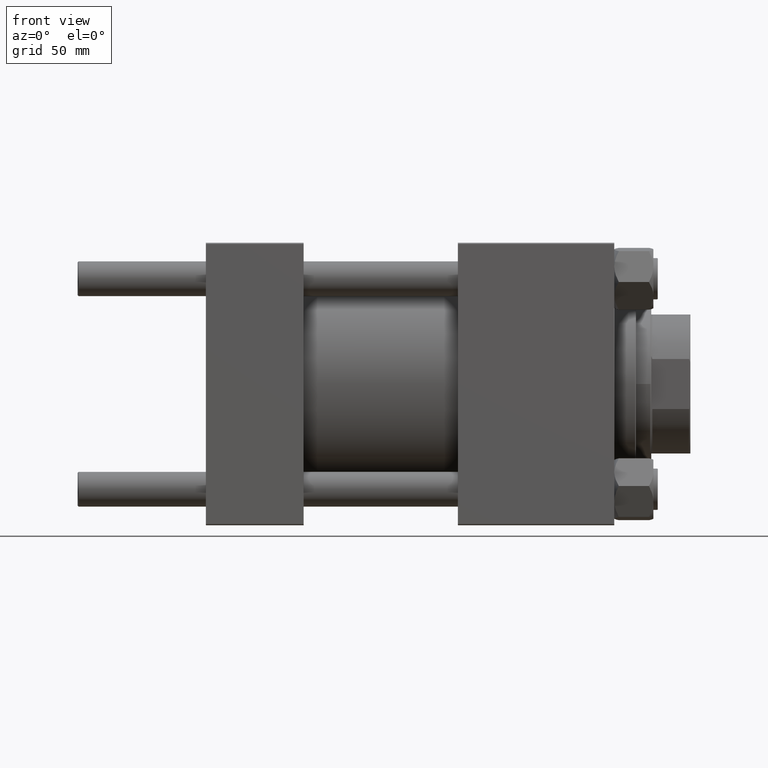
[diagram: clean part render]
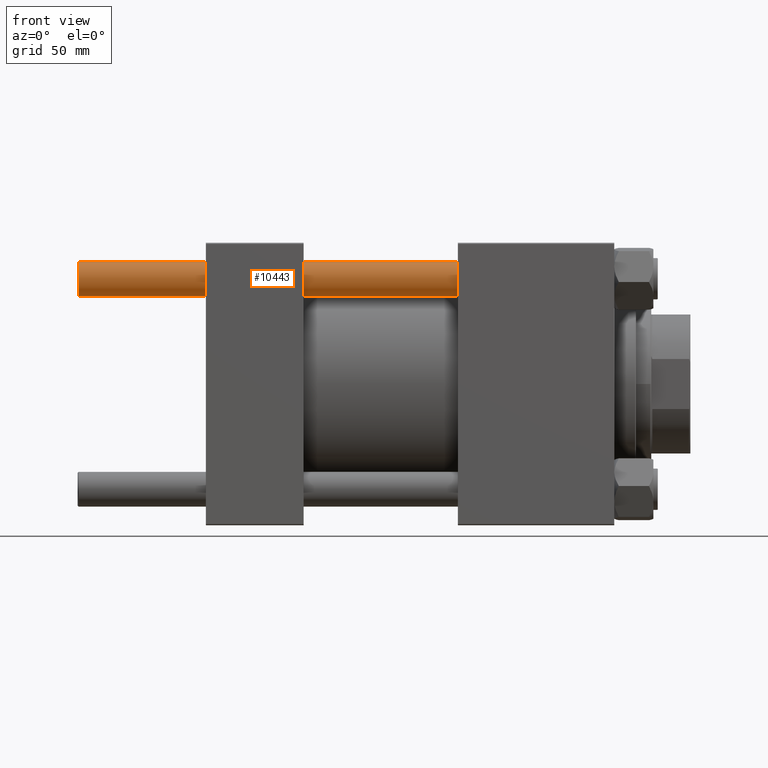
[diagram: same view with one face highlighted and labeled with its STEP entity id]
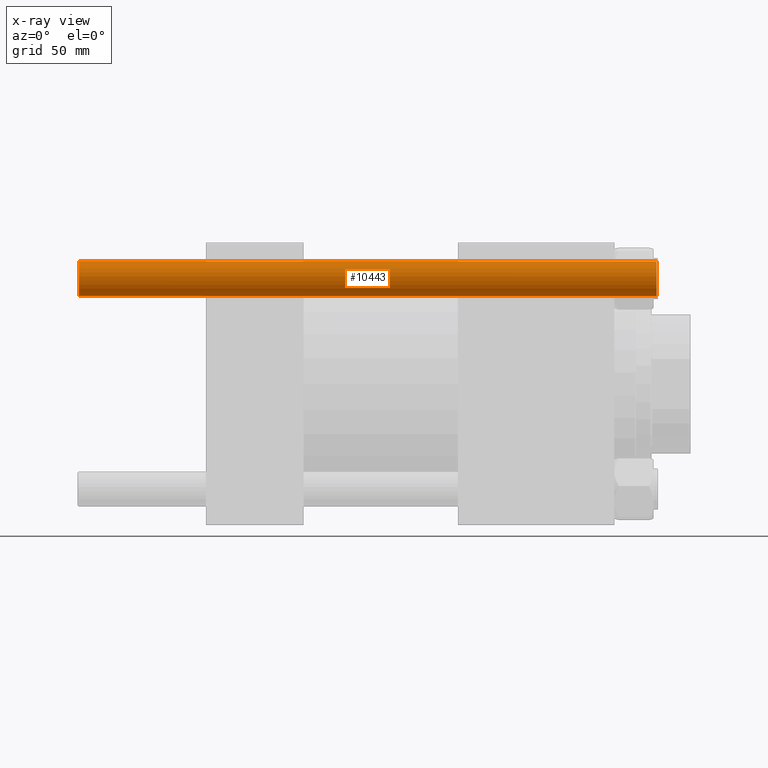
[diagram: x-ray of the same camera — body ghosted, the highlighted face saturated]
A machine part, front view. The second image highlights one B-rep face of the part: STEP entity #10443.
The next image is the same camera in x-ray: the body ghosted, the highlighted face saturated — about 0% of this face is hidden behind the body in this view.
In plain terms, the highlighted cylindrical surface (edge-blend (fillet) strip) has radius 8 mm, axis along (1, -0, 0).
Its self-contained STEP definition (entity closure, byte-faithful):
#122 = DIRECTION ( 'NONE',  ( -0.000000000000000000, -0.000000000000000000, -1.000000000000000000 ) ) ;
#5180 = VECTOR ( 'NONE', #122, 1000.000000000000000 ) ;
#8025 = EDGE_CURVE ( 'NONE', #29607, #33969, #20235, .T. ) ;
#8362 = ORIENTED_EDGE ( 'NONE', *, *, #13047, .T. ) ;
#8438 = EDGE_CURVE ( 'NONE', #9665, #33969, #30978, .T. ) ;
#9665 = VERTEX_POINT ( 'NONE', #36089 ) ;
#10443 = ADVANCED_FACE ( 'NONE', ( #48456 ), #24744, .T. ) ;
#11604 = CARTESIAN_POINT ( 'NONE',  ( -8.000000000000000000, 0.000000000000000000, 267.0000000000000000 ) ) ;
#12777 = DIRECTION ( 'NONE',  ( -0.000000000000000000, -0.000000000000000000, -1.000000000000000000 ) ) ;
#13047 = EDGE_CURVE ( 'NONE', #49894, #29607, #34051, .T. ) ;
#13277 = DIRECTION ( 'NONE',  ( -1.000000000000000000, 0.000000000000000000, 0.000000000000000000 ) ) ;
#17586 = CARTESIAN_POINT ( 'NONE',  ( 0.000000000000000000, 0.000000000000000000, 267.0000000000000000 ) ) ;
#17993 = CARTESIAN_POINT ( 'NONE',  ( 8.000000000000000000, 9.797174393178825657E-16, 267.0000000000000000 ) ) ;
#18546 = CARTESIAN_POINT ( 'NONE',  ( 0.000000000000000000, 0.000000000000000000, 0.5000000000000559552 ) ) ;
#20235 = CIRCLE ( 'NONE', #39770, 8.000000000000000000 ) ;
#23132 = AXIS2_PLACEMENT_3D ( 'NONE', #17586, #12777, #13277 ) ;
#23724 = CARTESIAN_POINT ( 'NONE',  ( -8.000000000000000000, 0.000000000000000000, 0.5000000000000559552 ) ) ;
#24744 = CYLINDRICAL_SURFACE ( 'NONE', #23132, 8.000000000000000000 ) ;
#24758 = DIRECTION ( 'NONE',  ( 1.000000000000000000, 0.000000000000000000, 0.000000000000000000 ) ) ;
#25955 = DIRECTION ( 'NONE',  ( -0.000000000000000000, -0.000000000000000000, 1.000000000000000000 ) ) ;
#29607 = VERTEX_POINT ( 'NONE', #32231 ) ;
#30559 = VECTOR ( 'NONE', #41452, 1000.000000000000000 ) ;
#30978 = LINE ( 'NONE', #11604, #5180 ) ;
#31053 = CIRCLE ( 'NONE', #38365, 8.000000000000000000 ) ;
#31648 = ORIENTED_EDGE ( 'NONE', *, *, #8025, .T. ) ;
#31660 = EDGE_CURVE ( 'NONE', #9665, #49894, #31053, .T. ) ;
#32231 = CARTESIAN_POINT ( 'NONE',  ( 8.000000000000000000, 9.797174393178825657E-16, 0.5000000000000559552 ) ) ;
#33969 = VERTEX_POINT ( 'NONE', #23724 ) ;
#34051 = LINE ( 'NONE', #17993, #30559 ) ;
#36089 = CARTESIAN_POINT ( 'NONE',  ( -8.000000000000000000, 0.000000000000000000, 266.5000000000000568 ) ) ;
#36933 = EDGE_LOOP ( 'NONE', ( #40753, #8362, #31648, #45107 ) ) ;
#38365 = AXIS2_PLACEMENT_3D ( 'NONE', #47728, #47986, #24758 ) ;
#38426 = DIRECTION ( 'NONE',  ( 1.000000000000000000, 0.000000000000000000, 0.000000000000000000 ) ) ;
#39770 = AXIS2_PLACEMENT_3D ( 'NONE', #18546, #25955, #38426 ) ;
#40753 = ORIENTED_EDGE ( 'NONE', *, *, #31660, .T. ) ;
#41452 = DIRECTION ( 'NONE',  ( -0.000000000000000000, -0.000000000000000000, -1.000000000000000000 ) ) ;
#44957 = CARTESIAN_POINT ( 'NONE',  ( 8.000000000000000000, 9.797174393178825657E-16, 266.5000000000000568 ) ) ;
#45107 = ORIENTED_EDGE ( 'NONE', *, *, #8438, .F. ) ;
#47728 = CARTESIAN_POINT ( 'NONE',  ( 0.000000000000000000, 0.000000000000000000, 266.5000000000000568 ) ) ;
#47986 = DIRECTION ( 'NONE',  ( 0.000000000000000000, 0.000000000000000000, -1.000000000000000000 ) ) ;
#48456 = FACE_OUTER_BOUND ( 'NONE', #36933, .T. ) ;
#49894 = VERTEX_POINT ( 'NONE', #44957 ) ;